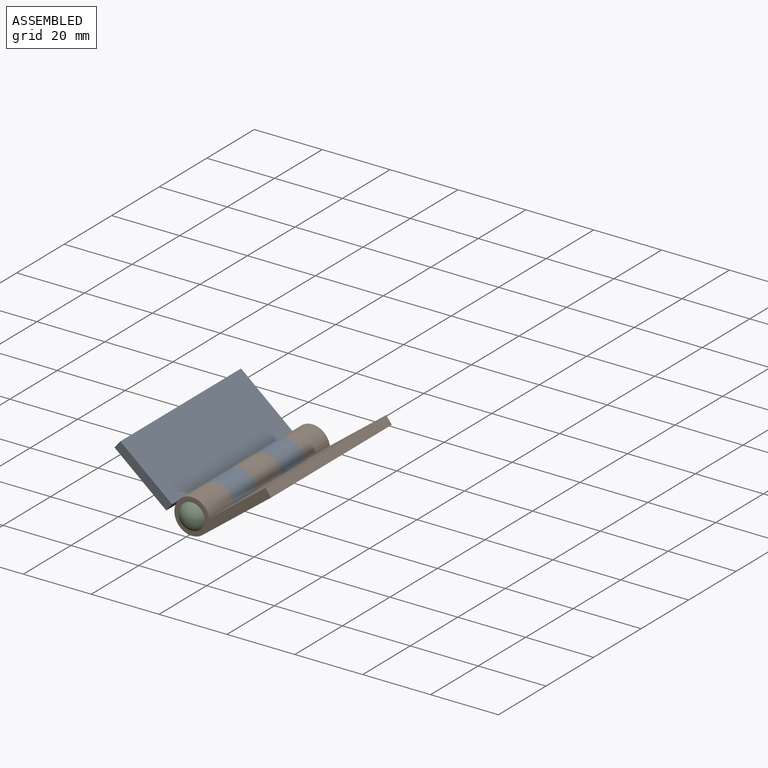
[diagram: assembled view]
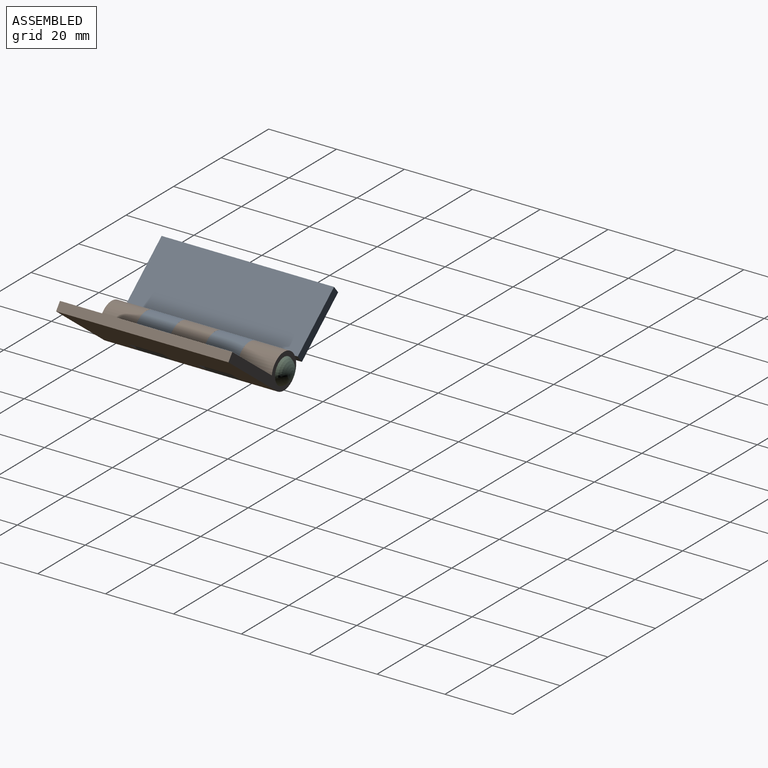
[diagram: assembled view, second angle]
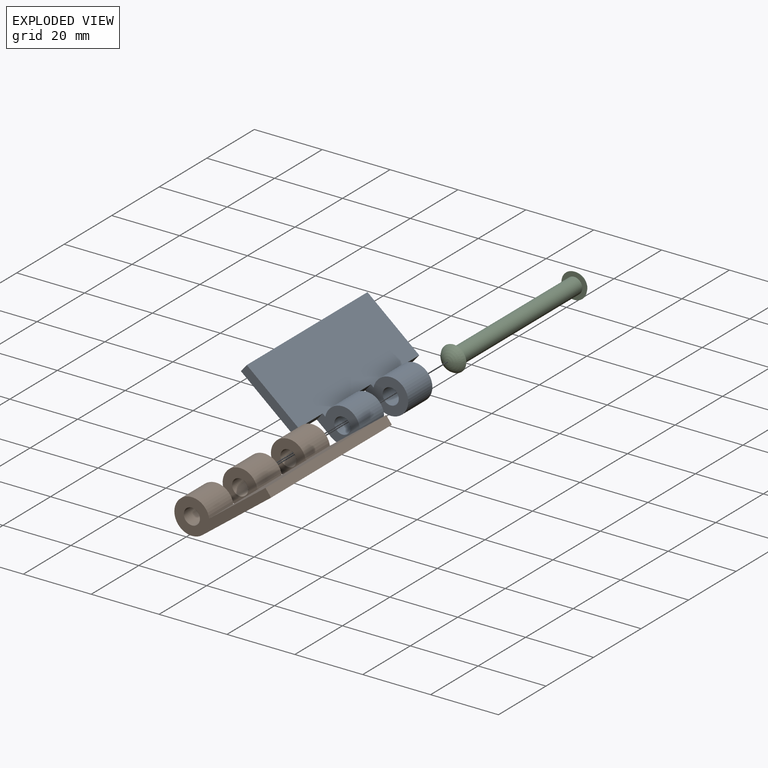
[diagram: exploded view]
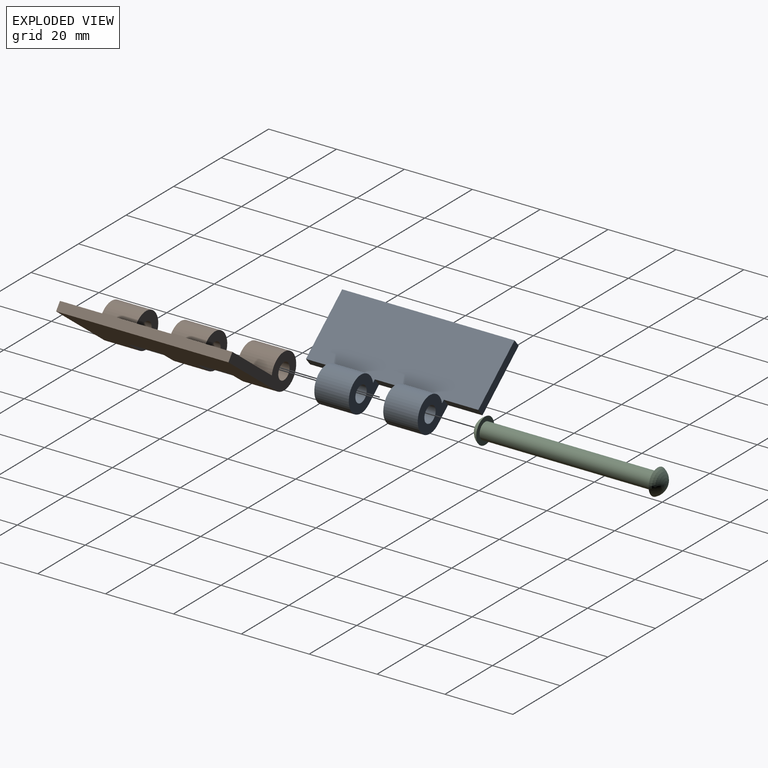
[diagram: exploded view, second angle]
ASSEMBLY  parts=3 mates=2
PART A: 16 faces, bbox 30.6x50.8x10.3 mm
  f0: plane 10.16x2.72mm, normal (1,0,0), area 27.6mm2, adj f3,f5,f8,f13
  f1: plane 10.16x2.72mm, normal (1,0,0), area 27.6mm2, adj f3,f5,f6,f12
  f2: plane 50.8x2.72mm, normal (-1,0,0), area 138.1mm2, adj f3,f5,f6,f7
  f3: plane 50.8x25.4mm, normal (0,0,-1), area 1121.4mm2, adj f0,f1,f2,f4,f6,f7,f8,f9
  f4: plane 10.16x2.72mm, normal (1,0,0), area 27.6mm2, adj f3,f5,f7,f9
  f5: plane 50.8x20.86mm, normal (0,0,1), area 1029.1mm2, adj f0,f1,f2,f4,f6,f7,f8,f9
  f6: plane 19.86x2.72mm, normal (0,-1,0), area 54mm2, adj f1,f2,f3,f5
  f7: plane 19.86x2.72mm, normal (0,1,0), area 54mm2, adj f2,f3,f4,f5
  f8: plane 10.7x10.32mm, normal (0,-1,0), area 72.1mm2, adj f0,f3,f5,f10,f11
  f9: plane 10.7x10.32mm, normal (0,1,0), area 72.1mm2, adj f3,f4,f5,f10,f11
  f10: cylinder r=5.16mm len=10.32mm, axis (0,1,0), area 272.9mm2, adj f3,f5,f8,f9
  f11: cylinder r=2.38mm len=10.16mm, axis (0,1,0), area 152mm2, adj f8,f9
  f12: plane 10.7x10.32mm, normal (0,-1,0), area 72.1mm2, adj f1,f3,f5,f14,f15
  f13: plane 10.7x10.32mm, normal (0,1,0), area 72.1mm2, adj f0,f3,f5,f14,f15
  f14: cylinder r=5.16mm len=10.32mm, axis (0,1,0), area 272.9mm2, adj f3,f5,f12,f13
  f15: cylinder r=2.38mm len=10.16mm, axis (0,1,0), area 152mm2, adj f12,f13
PART B: 17 faces, bbox 30.6x50.8x10.3 mm
  f0: cylinder r=5.16mm len=10.32mm, axis (0,1,0), area 272.9mm2, adj f7,f9,f13,f15
  f1: cylinder r=2.38mm len=10.16mm, axis (0,1,0), area 152mm2, adj f13,f15
  f2: cylinder r=5.16mm len=10.32mm, axis (0,1,0), area 272.9mm2, adj f5,f7,f9,f12
  f3: cylinder r=2.38mm len=10.16mm, axis (0,1,0), area 152mm2, adj f5,f12
  f4: plane 30.56x10.32mm, normal (0,-1,0), area 126mm2, adj f6,f7,f8,f9,f10
  f5: plane 30.56x10.32mm, normal (0,1,0), area 126mm2, adj f2,f3,f6,f7,f9
  f6: plane 50.8x2.72mm, normal (1,0,0), area 138.1mm2, adj f4,f5,f7,f9
  f7: plane 50.8x20.86mm, normal (0,0,1), area 1039.2mm2, adj f0,f2,f4,f5,f6,f8,f11,f12
  f8: cylinder r=5.16mm len=10.32mm, axis (0,1,0), area 272.9mm2, adj f4,f7,f9,f16
  f9: plane 50.8x25.4mm, normal (0,0,-1), area 1177.7mm2, adj f0,f2,f4,f5,f6,f8,f11,f12
  f10: cylinder r=2.38mm len=10.16mm, axis (0,1,0), area 152mm2, adj f4,f16
  f11: plane 10.16x2.72mm, normal (-1,0,0), area 27.6mm2, adj f7,f9,f12,f13
  f12: plane 10.7x10.32mm, normal (0,-1,0), area 72.1mm2, adj f2,f3,f7,f9,f11
  f13: plane 10.7x10.32mm, normal (0,1,0), area 72.1mm2, adj f0,f1,f7,f9,f11
  f14: plane 10.16x2.72mm, normal (-1,0,0), area 27.6mm2, adj f7,f9,f15,f16
  f15: plane 10.7x10.32mm, normal (0,-1,0), area 72.1mm2, adj f0,f1,f7,f9,f14
  f16: plane 10.7x10.32mm, normal (0,1,0), area 72.1mm2, adj f7,f8,f9,f10,f14
PART C: 5 faces, bbox 7.5x55.7x7.5 mm
  f0: sphere r=4.13mm, area 63.5mm2, adj f4
  f1: sphere r=4.13mm, area 63.5mm2, adj f2
  f2: plane 7.54x7.54mm, normal (0,1,0), area 26.8mm2, adj f1,f3
  f3: cylinder r=2.38mm len=50.8mm, axis (0,1,0), area 760.1mm2, adj f2,f4
  f4: plane 7.54x7.54mm, normal (0,-1,0), area 26.8mm2, adj f0,f3
PLACE A rot(axis=(0,1,0),39.8deg) t=(2.17,4.66,2.26)mm
PLACE B rot(axis=(0,-1,0),37.2deg) t=(2.17,4.66,2.26)mm
PLACE C t=(2.17,4.66,2.26)mm fixed
MATE revolute A.f10 <-> B.f0  axis (0,1,0) through (2.17,19.9,2.26)mm
MATE revolute B.f0 <-> C.f3  axis (0,1,0) through (2.17,30.06,2.26)mm
